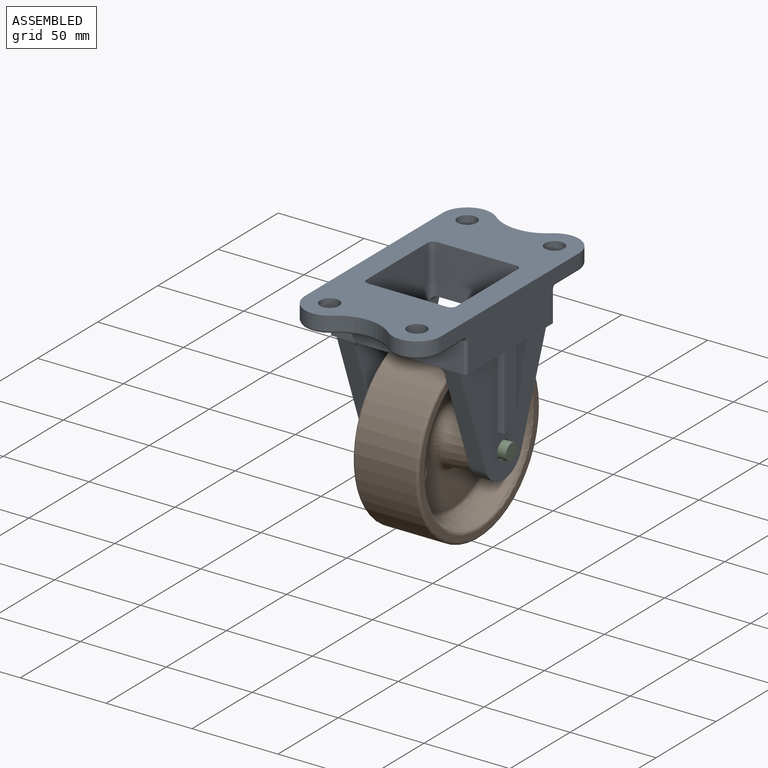
[diagram: assembled view]
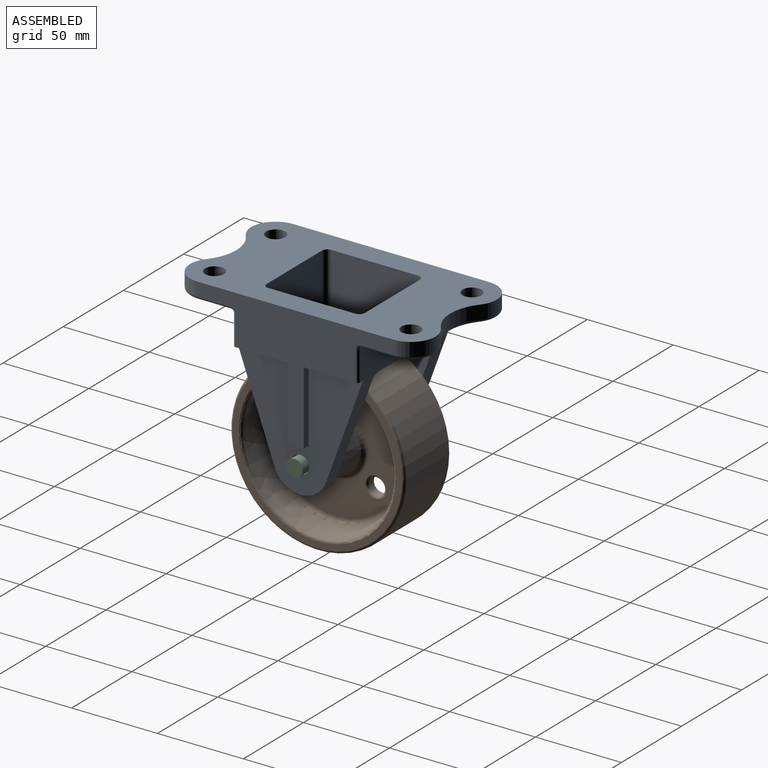
[diagram: assembled view, second angle]
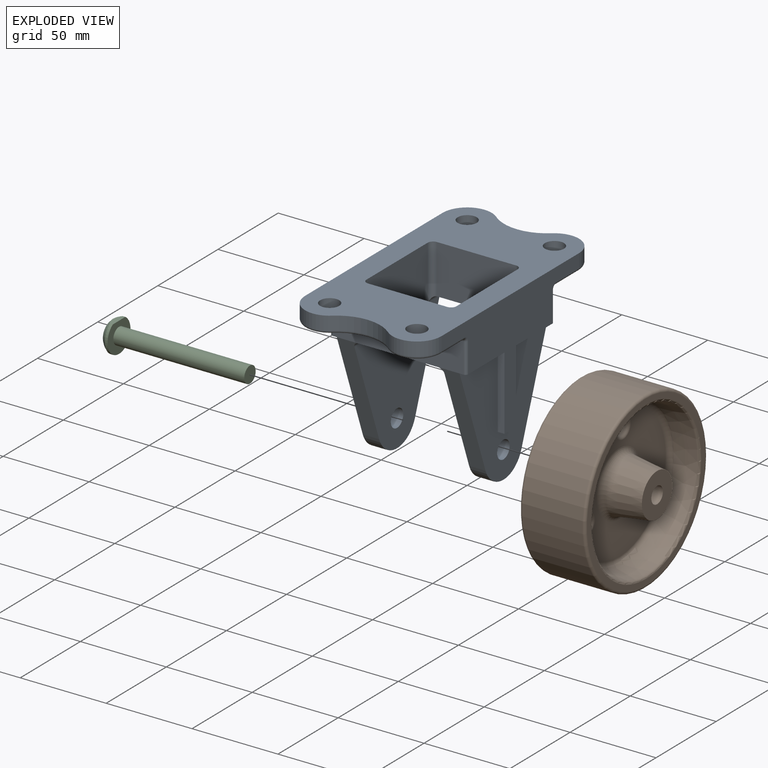
[diagram: exploded view]
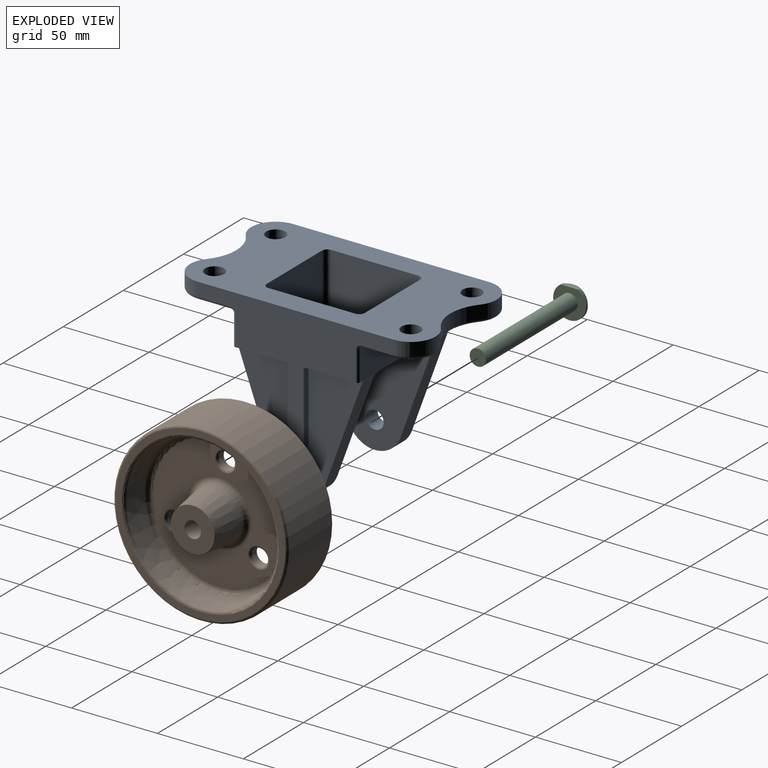
[diagram: exploded view, second angle]
ASSEMBLY  parts=3 mates=3
PART A: 71 faces, bbox 81.7x145.2x98.4 mm
  f0: plane 142.88x79.38mm, normal (0,0,-1), area 7277.2mm2, adj f1,f4,f5,f6,f8,f9,f10,f11
  f1: plane 114.3x73.82mm, normal (-1,0,0), area 2784.1mm2, adj f0,f9,f10,f31,f32,f33,f34,f35
  f2: plane 46.04x7.94mm, normal (0,0,1), area 365.4mm2, adj f4,f20,f46,f48
  f3: plane 46.04x7.94mm, normal (0,0,1), area 365.4mm2, adj f5,f19,f44,f50
  f4: plane 46.04x28.58mm, normal (0,1,0), area 1315.5mm2, adj f0,f2,f45,f47
  f5: plane 46.04x28.58mm, normal (0,-1,0), area 1315.5mm2, adj f0,f3,f43,f49
  f6: plane 114.3x71.44mm, normal (1,0,0), area 2761.4mm2, adj f0,f12,f17,f37,f38,f39,f40,f41
  f7: plane 76.2x31.75mm, normal (0,0,1), area 1891.8mm2, adj f13,f14,f61,f62,f63,f65,f67,f68
  f8: cylinder r=25.4mm len=32.51mm, axis (0,0,-1), area 280mm2, adj f0,f9,f17,f62
  f9: cylinder r=14.29mm len=23.43mm, axis (0,0,-1), area 256.9mm2, adj f0,f1,f8,f65
  f10: cylinder r=14.29mm len=23.43mm, axis (0,0,-1), area 256.9mm2, adj f0,f1,f11,f51
  f11: cylinder r=25.4mm len=32.51mm, axis (0,0,-1), area 280mm2, adj f0,f10,f12,f52
  f12: cylinder r=14.29mm len=23.43mm, axis (0,0,-1), area 256.9mm2, adj f0,f6,f11,f55
  f13: cylinder r=5.56mm len=11.11mm, axis (0,0,-1), area 332.5mm2, adj f0,f7
  f14: cylinder r=5.56mm len=11.11mm, axis (0,0,-1), area 332.5mm2, adj f0,f7
  f15: cylinder r=5.56mm len=11.11mm, axis (0,0,-1), area 332.5mm2, adj f0,f18
  f16: cylinder r=5.56mm len=11.11mm, axis (0,0,-1), area 332.5mm2, adj f0,f18
  f17: cylinder r=14.29mm len=23.43mm, axis (0,0,-1), area 256.9mm2, adj f0,f6,f8,f61
  f18: plane 76.2x31.75mm, normal (0,0,1), area 1891.8mm2, adj f15,f16,f51,f52,f53,f55,f57,f58
  f19: plane 76.2x17.46mm, normal (0,1,0), area 1330.6mm2, adj f3,f21,f28,f34,f38,f64,f68,f70
  f20: plane 76.2x17.46mm, normal (0,-1,0), area 1330.6mm2, adj f2,f23,f26,f33,f39,f54,f58,f60
  f21: plane 59.4x21.59mm, normal (0,0.94,0.34), area 604.3mm2, adj f19,f22,f25,f42,f50
  f22: cylinder r=15.88mm len=29.84mm, axis (1,0,0), area 369.6mm2, adj f21,f23,f25,f42
  f23: plane 59.4x21.59mm, normal (0,-0.94,0.34), area 604.3mm2, adj f20,f22,f25,f42,f48
  f24: cylinder r=5.16mm len=10.32mm, axis (1,0,0), area 308.8mm2, adj f25,f42
  f25: plane 98.43x70.72mm, normal (-1,0,0), area 4583.2mm2, adj f0,f21,f22,f23,f24,f47,f48,f49
  f26: plane 59.4x21.59mm, normal (0,-0.94,0.34), area 604.3mm2, adj f20,f27,f30,f36,f46
  f27: cylinder r=15.88mm len=29.84mm, axis (-1,0,0), area 369.6mm2, adj f26,f28,f30,f36
  f28: plane 59.4x21.59mm, normal (0,0.94,0.34), area 604.3mm2, adj f19,f27,f30,f36,f44
  f29: cylinder r=5.16mm len=10.32mm, axis (-1,0,0), area 308.8mm2, adj f30,f36
  f30: plane 98.43x70.72mm, normal (1,0,0), area 4583.2mm2, adj f0,f26,f27,f28,f29,f43,f44,f45
  f31: plane 9.53x3.97mm, normal (0,0,1), area 37.8mm2, adj f1,f32,f35,f36
  f32: plane 45.24x3.97mm, normal (0,-1,0), area 179.6mm2, adj f1,f31,f33,f36
  f33: plane 31.75x3.97mm, normal (0,0,1), area 125.5mm2, adj f1,f20,f32,f36,f54
  f34: plane 31.75x3.97mm, normal (0,0,1), area 125.5mm2, adj f1,f19,f35,f36,f70
  f35: plane 45.24x3.97mm, normal (0,1,0), area 179.6mm2, adj f1,f31,f34,f36
  f36: plane 73.03x69.85mm, normal (-1,0,0), area 2767.5mm2, adj f26,f27,f28,f29,f31,f32,f33,f34
  f37: plane 42.86x3.97mm, normal (0,1,0), area 170.1mm2, adj f6,f38,f41,f42
  f38: plane 31.75x3.97mm, normal (0,0,1), area 125.5mm2, adj f6,f19,f37,f42,f64
  f39: plane 31.75x3.97mm, normal (0,0,1), area 125.5mm2, adj f6,f20,f40,f42,f60
  f40: plane 42.86x3.97mm, normal (0,-1,0), area 170.1mm2, adj f6,f39,f41,f42
  f41: plane 9.53x3.97mm, normal (0,0,1), area 37.8mm2, adj f6,f37,f40,f42
  f42: plane 73.03x69.85mm, normal (1,0,0), area 2790.2mm2, adj f21,f22,f23,f24,f37,f38,f39,f40
  f43: cylinder r=3.17mm len=31.75mm, axis (0,0,1), area 148.3mm2, adj f0,f5,f30,f44
  f44: cylinder r=3.17mm len=11.11mm, axis (0,-1,0), area 43.2mm2, adj f3,f28,f30,f43
  f45: cylinder r=3.17mm len=31.75mm, axis (0,0,-1), area 148.3mm2, adj f0,f4,f30,f46
  f46: cylinder r=3.17mm len=11.11mm, axis (0,-1,0), area 43.2mm2, adj f2,f26,f30,f45
  f47: cylinder r=3.17mm len=31.75mm, axis (0,0,-1), area 148.3mm2, adj f0,f4,f25,f48
  f48: cylinder r=3.17mm len=11.11mm, axis (0,-1,0), area 43.2mm2, adj f2,f23,f25,f47
  f49: cylinder r=3.17mm len=31.75mm, axis (0,0,1), area 148.3mm2, adj f0,f5,f25,f50
  f50: cylinder r=3.17mm len=11.11mm, axis (0,-1,0), area 43.2mm2, adj f3,f21,f25,f49
  f51: torus R=12.7mm, axis (0,0,1), area 77.4mm2, adj f10,f18,f52,f53
  f52: torus R=26.99mm, axis (0,0,1), area 90mm2, adj f11,f18,f51,f55
  f53: cylinder r=1.59mm len=19.05mm, axis (0,1,0), area 47.5mm2, adj f1,f18,f51,f56
  f54: cylinder r=1.59mm len=17.46mm, axis (0,0,1), area 43.5mm2, adj f1,f20,f33,f56
  f55: torus R=12.7mm, axis (0,0,1), area 77.4mm2, adj f12,f18,f52,f57
  f56: torus R=3.17mm, axis (1,0,0), area 8.5mm2, adj f1,f53,f54,f58
  f57: cylinder r=1.59mm len=19.05mm, axis (0,-1,0), area 47.5mm2, adj f6,f18,f55,f59
  f58: cylinder r=1.59mm len=76.2mm, axis (-1,0,0), area 190mm2, adj f18,f20,f56,f59
  f59: torus R=3.17mm, axis (1,0,0), area 8.5mm2, adj f6,f57,f58,f60
  f60: cylinder r=1.59mm len=17.46mm, axis (0,0,-1), area 43.5mm2, adj f6,f20,f39,f59
  f61: torus R=12.7mm, axis (0,0,1), area 77.4mm2, adj f7,f17,f62,f63
  f62: torus R=26.99mm, axis (0,0,1), area 90mm2, adj f7,f8,f61,f65
  f63: cylinder r=1.59mm len=19.05mm, axis (0,-1,0), area 47.5mm2, adj f6,f7,f61,f66
  f64: cylinder r=1.59mm len=17.46mm, axis (0,0,1), area 43.5mm2, adj f6,f19,f38,f66
  f65: torus R=12.7mm, axis (0,0,1), area 77.4mm2, adj f7,f9,f62,f67
  f66: torus R=3.17mm, axis (1,0,0), area 8.5mm2, adj f6,f63,f64,f68
  f67: cylinder r=1.59mm len=19.05mm, axis (0,1,0), area 47.5mm2, adj f1,f7,f65,f69
  f68: cylinder r=1.59mm len=76.2mm, axis (1,0,0), area 190mm2, adj f7,f19,f66,f69
  f69: torus R=3.17mm, axis (1,0,0), area 8.5mm2, adj f1,f67,f68,f70
  f70: cylinder r=1.59mm len=17.46mm, axis (0,0,-1), area 43.5mm2, adj f1,f19,f34,f69
PART B: 29 faces, bbox 110x110x50.8 mm
  f0: cylinder r=50.8mm len=101.6mm, axis (0,0,-1), area 11147.6mm2, adj f19,f22
  f1: plane 98.43x98.43mm, normal (0,0,-1), area 1032.6mm2, adj f19,f20
  f2: cone r=44.45mm half-angle=11.3deg, axis (0,0,-1), area 3318.4mm2, adj f3,f20
  f3: torus R=38.67mm, axis (0,0,-1), area 1110.5mm2, adj f2,f4
  f4: plane 77.34x77.34mm, normal (0,0,-1), area 3228.1mm2, adj f3,f5,f23,f24,f25
  f5: torus R=18.63mm, axis (0,0,-1), area 476.6mm2, adj f4,f6
  f6: cone r=15.49mm half-angle=8.1deg, axis (0,0,1), area 1744.1mm2, adj f5,f7
  f7: plane 25.4x25.4mm, normal (0,0,-1), area 433.5mm2, adj f6,f15
  f8: plane 25.4x25.4mm, normal (0,0,1), area 433.5mm2, adj f9,f15
  f9: cone r=15.49mm half-angle=8.1deg, axis (0,0,-1), area 1744.1mm2, adj f8,f10
  f10: torus R=18.63mm, axis (0,0,-1), area 476.6mm2, adj f9,f11
  f11: plane 77.34x77.34mm, normal (0,0,1), area 3228.1mm2, adj f10,f12,f26,f27,f28
  f12: torus R=38.67mm, axis (0,0,-1), area 1110.5mm2, adj f11,f13
  f13: cone r=44.45mm half-angle=11.3deg, axis (0,0,1), area 3318.4mm2, adj f12,f21
  f14: plane 98.43x98.43mm, normal (0,0,1), area 1032.6mm2, adj f21,f22
  f15: cylinder r=4.83mm len=50.8mm, axis (0,0,1), area 1540.4mm2, adj f7,f8
  f16: cylinder r=4.76mm len=9.53mm, axis (0,0,1), area 95mm2, adj f25,f26
  f17: cylinder r=4.76mm len=9.53mm, axis (0,0,1), area 95mm2, adj f24,f27
  f18: cylinder r=4.76mm len=9.53mm, axis (0,0,1), area 95mm2, adj f23,f28
  f19: torus R=49.21mm, axis (0,0,1), area 786.9mm2, adj f0,f1
  f20: torus R=45.75mm, axis (0,0,1), area 614mm2, adj f1,f2
  f21: torus R=45.75mm, axis (0,0,1), area 614mm2, adj f13,f14
  f22: torus R=49.21mm, axis (0,0,1), area 786.9mm2, adj f0,f14
  f23: torus R=6.35mm, axis (0,0,1), area 83.7mm2, adj f4,f18
  f24: torus R=6.35mm, axis (0,0,1), area 83.7mm2, adj f4,f17
  f25: torus R=6.35mm, axis (0,0,1), area 83.7mm2, adj f4,f16
  f26: torus R=6.35mm, axis (0,0,1), area 83.7mm2, adj f11,f16
  f27: torus R=6.35mm, axis (0,0,1), area 83.7mm2, adj f11,f17
  f28: torus R=6.35mm, axis (0,0,1), area 83.7mm2, adj f11,f18
PART C: 7 faces, bbox 19.1x81x19.1 mm
  f0: sphere r=11.11mm, area 202.5mm2, adj f4,f5,f6
  f1: plane 19.05x17.46mm, normal (0,1,0), area 202.4mm2, adj f2,f5,f6
  f2: cylinder r=4.76mm len=76.2mm, axis (0,1,0), area 2280.2mm2, adj f1,f3
  f3: plane 9.53x9.53mm, normal (0,1,0), area 71.3mm2, adj f2
  f4: plane 13.31x13.31mm, normal (0,-1,0), area 139.2mm2, adj f0
  f5: cylinder r=9.53mm len=19.05mm, axis (0,1,0), area 77.3mm2, adj f0,f1,f6
  f6: plane 10.53x3.64mm, normal (0,0,1), area 31.6mm2, adj f0,f1,f5
PLACE A rot(axis=(-1,0,0),180deg) t=(-18.1,-139.82,162.63)mm
PLACE B rot(axis=(0.64,0.42,0.64),134deg) t=(-11.11,-152.25,79.85)mm
PLACE C rot(axis=(0,0,-1),90deg) t=(-15.08,-151.7,80.08)mm
MATE cylindrical A.f22 <-> C.f2  axis (1,0,0) through (7.39,-151.7,80.08)mm
MATE cylindrical B.f0 <-> A.f22  axis (-1,0,0) through (-0.46,-151.7,80.08)mm
MATE planar A.f36 <-> C.f1  axis (-1,0,0) through (-64.05,-151.7,105.78)mm
